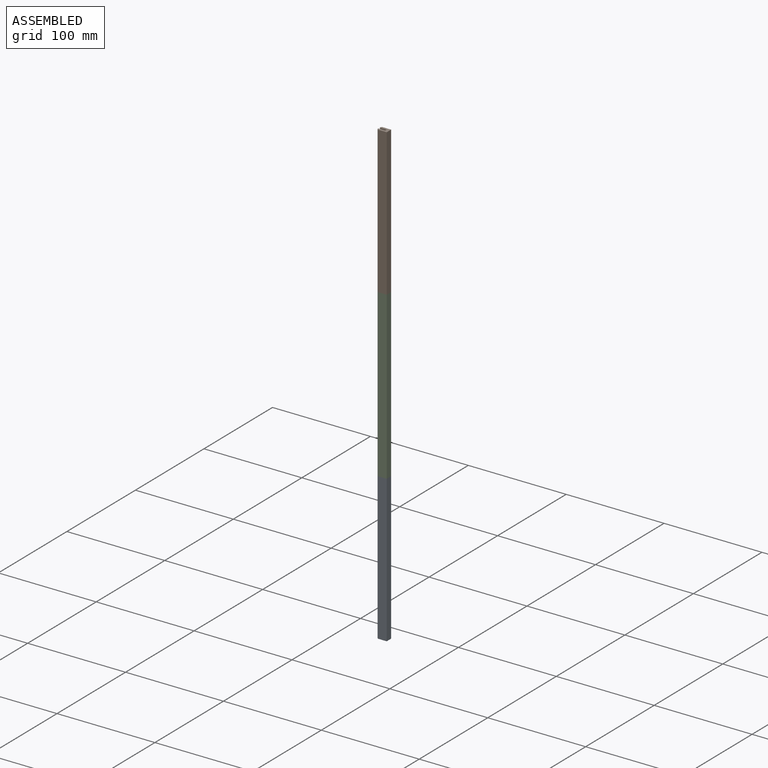
[diagram: assembled view]
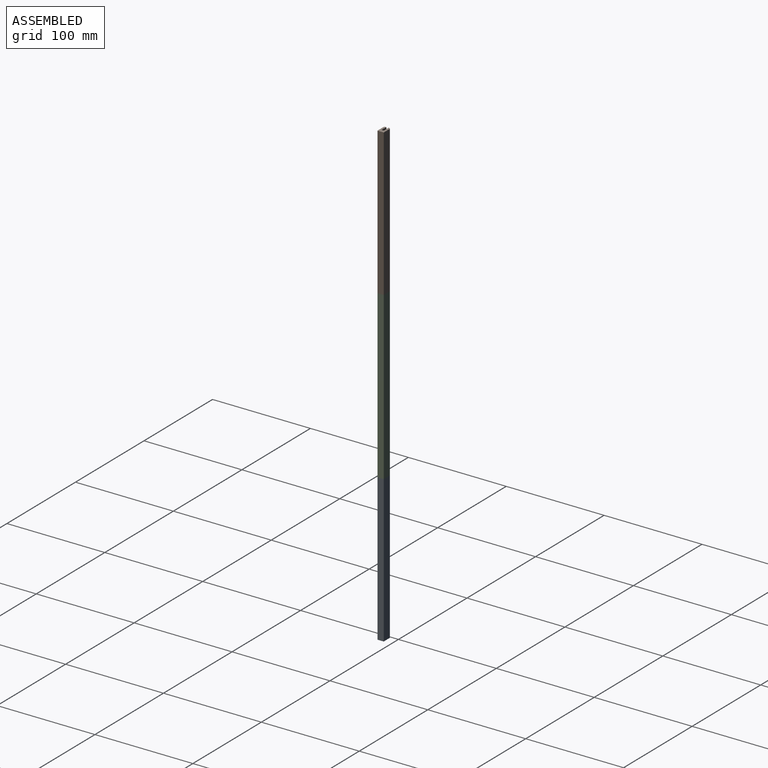
[diagram: assembled view, second angle]
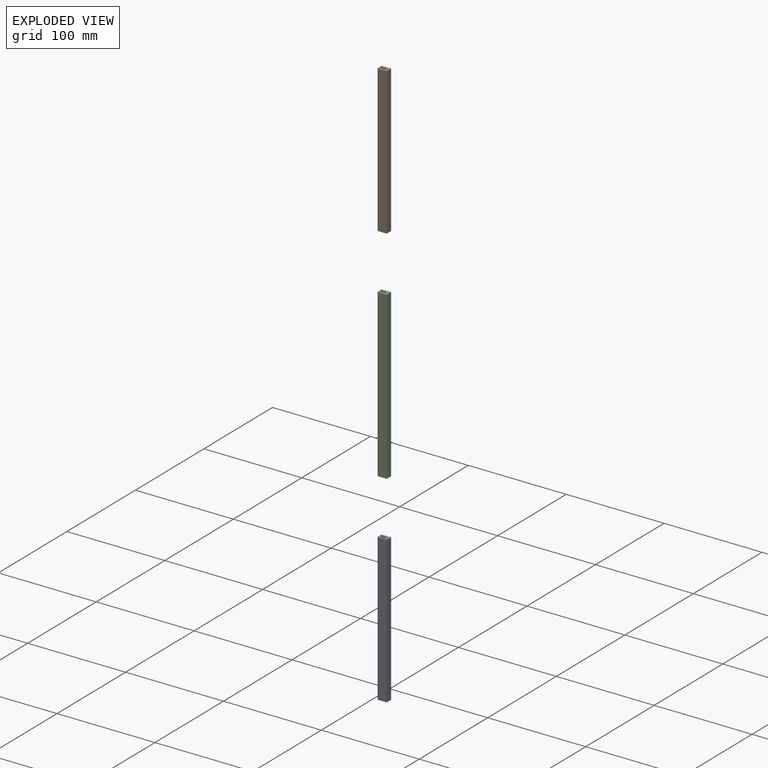
[diagram: exploded view]
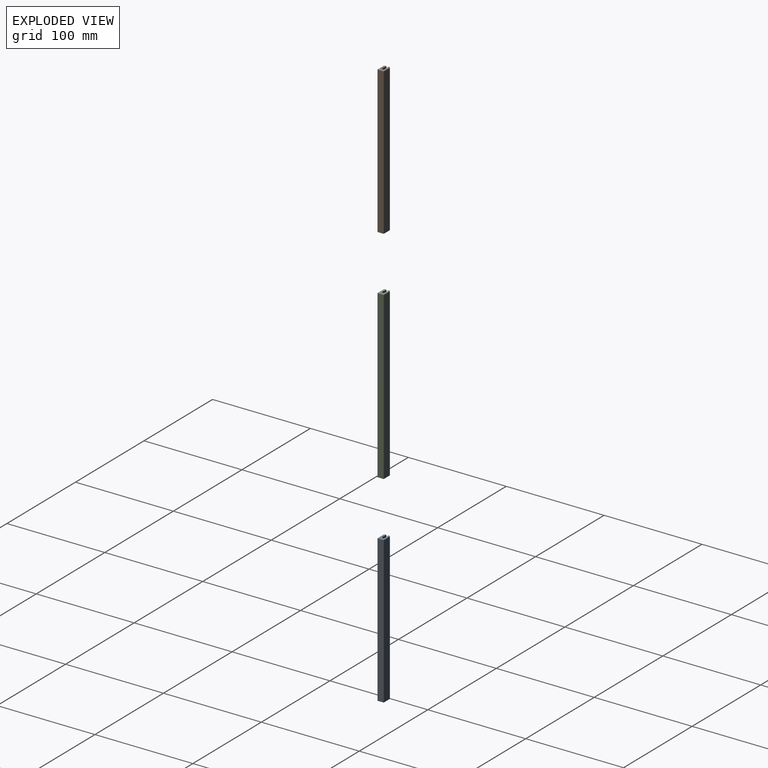
[diagram: exploded view, second angle]
ASSEMBLY  parts=3 mates=2
PART A: 20 faces, bbox 6.4x150x10 mm
  f0: plane 150x1mm, normal (0,0,1), area 150mm2, adj f15,f16,f17,f18
  f1: plane 150x9mm, normal (-1,0,0), area 1350mm2, adj f2,f16,f17,f18
  f2: plane 150x6.4mm, normal (0,0,-1), area 960mm2, adj f1,f3,f16,f17
  f3: plane 150x9mm, normal (1,0,0), area 1350mm2, adj f2,f16,f17,f19
  f4: plane 150x1mm, normal (0,0,1), area 150mm2, adj f5,f16,f17,f19
  f5: cylinder r=0.5mm len=150mm, axis (0,1,0), area 173.9mm2, adj f4,f6,f16,f17
  f6: plane 150x1.63mm, normal (-1,0,0), area 243.8mm2, adj f5,f7,f16,f17
  f7: cylinder r=0.5mm len=150mm, axis (0,1,0), area 173.9mm2, adj f6,f8,f16,f17
  f8: plane 150x3.04mm, normal (-1,0,0), area 456.3mm2, adj f7,f9,f16,f17
  f9: cylinder r=0.5mm len=150mm, axis (0,1,0), area 117.8mm2, adj f8,f10,f16,f17
  f10: plane 150x1.4mm, normal (0,0,1), area 210mm2, adj f9,f11,f16,f17
  f11: cylinder r=0.5mm len=150mm, axis (0,1,0), area 117.8mm2, adj f10,f12,f16,f17
  f12: plane 150x3.04mm, normal (1,0,0), area 456.3mm2, adj f11,f13,f16,f17
  f13: cylinder r=0.5mm len=150mm, axis (0,1,0), area 173.9mm2, adj f12,f14,f16,f17
  f14: plane 150x1.63mm, normal (1,0,0), area 243.8mm2, adj f13,f15,f16,f17
  f15: cylinder r=0.5mm len=150mm, axis (0,1,0), area 173.9mm2, adj f0,f14,f16,f17
  f16: plane 10x6.4mm, normal (0,-1,0), area 47.1mm2, adj f0,f1,f2,f3,f4,f5,f6,f7
  f17: plane 10x6.4mm, normal (0,1,0), area 47.1mm2, adj f0,f1,f2,f3,f4,f5,f6,f7
  f18: plane 150x1mm, normal (-0.71,0,0.71), area 212.1mm2, adj f0,f1,f16,f17
  f19: plane 150x1mm, normal (0.71,0,0.71), area 212.1mm2, adj f3,f4,f16,f17
PART B: same geometry as A
PART C: 20 faces, bbox 6.4x170x10 mm
  f0: plane 170x1mm, normal (0,0,1), area 170mm2, adj f15,f16,f17,f18
  f1: plane 170x9mm, normal (-1,0,0), area 1530mm2, adj f2,f16,f17,f18
  f2: plane 170x6.4mm, normal (0,0,-1), area 1088mm2, adj f1,f3,f16,f17
  f3: plane 170x9mm, normal (1,0,0), area 1530mm2, adj f2,f16,f17,f19
  f4: plane 170x1mm, normal (0,0,1), area 170mm2, adj f5,f16,f17,f19
  f5: cylinder r=0.5mm len=170mm, axis (0,1,0), area 197.1mm2, adj f4,f6,f16,f17
  f6: plane 170x1.63mm, normal (-1,0,0), area 276.3mm2, adj f5,f7,f16,f17
  f7: cylinder r=0.5mm len=170mm, axis (0,1,0), area 197.1mm2, adj f6,f8,f16,f17
  f8: plane 170x3.04mm, normal (-1,0,0), area 517.1mm2, adj f7,f9,f16,f17
  f9: cylinder r=0.5mm len=170mm, axis (0,1,0), area 133.5mm2, adj f8,f10,f16,f17
  f10: plane 170x1.4mm, normal (0,0,1), area 238mm2, adj f9,f11,f16,f17
  f11: cylinder r=0.5mm len=170mm, axis (0,1,0), area 133.5mm2, adj f10,f12,f16,f17
  f12: plane 170x3.04mm, normal (1,0,0), area 517.1mm2, adj f11,f13,f16,f17
  f13: cylinder r=0.5mm len=170mm, axis (0,1,0), area 197.1mm2, adj f12,f14,f16,f17
  f14: plane 170x1.63mm, normal (1,0,0), area 276.3mm2, adj f13,f15,f16,f17
  f15: cylinder r=0.5mm len=170mm, axis (0,1,0), area 197.1mm2, adj f0,f14,f16,f17
  f16: plane 10x6.4mm, normal (0,-1,0), area 47.1mm2, adj f0,f1,f2,f3,f4,f5,f6,f7
  f17: plane 10x6.4mm, normal (0,1,0), area 47.1mm2, adj f0,f1,f2,f3,f4,f5,f6,f7
  f18: plane 170x1mm, normal (-0.71,0,0.71), area 240.4mm2, adj f0,f1,f16,f17
  f19: plane 170x1mm, normal (0.71,0,0.71), area 240.4mm2, adj f3,f4,f16,f17
PLACE A rot(axis=(-0.58,-0.58,0.58),120deg) t=(222,267.2,95)mm
PLACE B rot(axis=(-0.58,-0.58,0.58),120deg) t=(222,267.2,415)mm
PLACE C rot(axis=(-0.58,-0.58,0.58),120deg) t=(222,267.2,255)mm
MATE fastened C.f17 <-> A.f16  axis (0,0,-1) through (217.58,267.2,170)mm
MATE fastened C.f16 <-> B.f17  axis (0,0,1) through (217.58,267.2,340)mm
